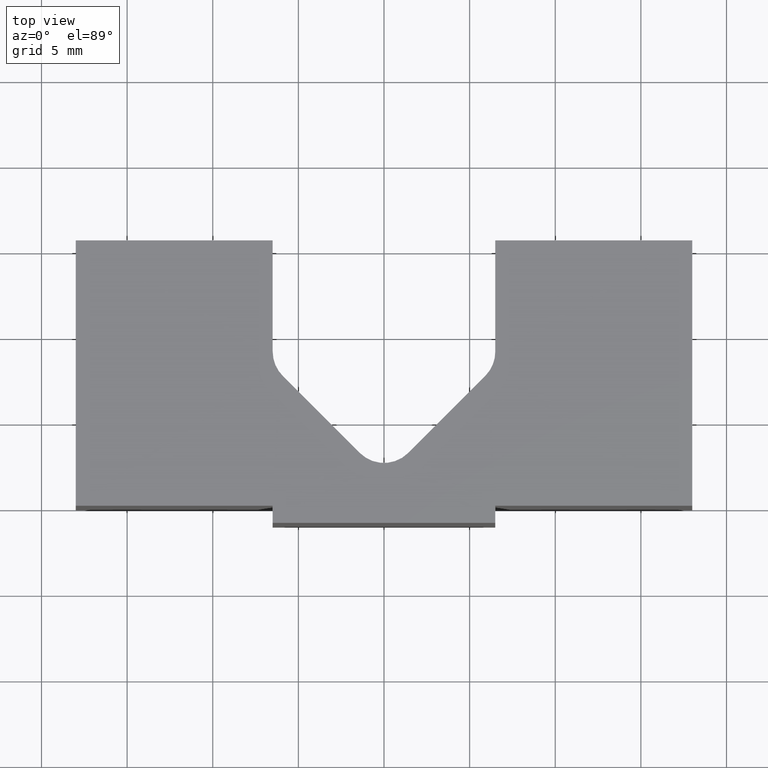
[diagram: clean part render]
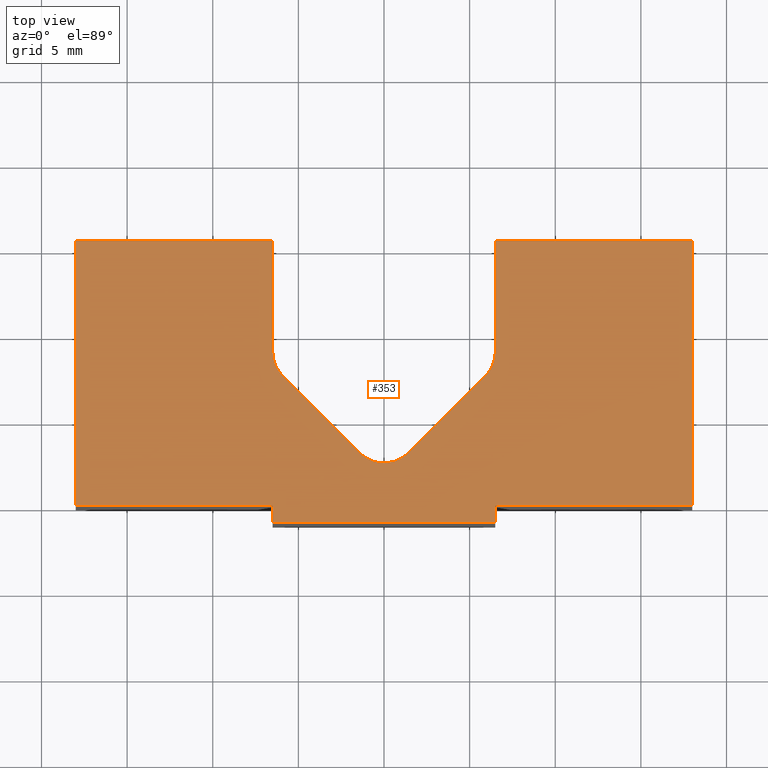
[diagram: same view with one face highlighted and labeled with its STEP entity id]
A machine part, top view. The second image highlights one B-rep face of the part: STEP entity #353.
In plain terms, the highlighted planar face has unit normal (0, 0, 1).
Its self-contained STEP definition (entity closure, byte-faithful):
#36=FACE_OUTER_BOUND('',#54,.T.);
#54=EDGE_LOOP('',(#305,#306,#307,#308,#309,#310,#311,#312,#313,#314,#315,
#316,#317,#318,#319,#320));
#58=CIRCLE('',#389,2.00000000000001);
#59=CIRCLE('',#392,2.);
#60=CIRCLE('',#395,2.);
#74=LINE('',#530,#116);
#77=LINE('',#535,#119);
#79=LINE('',#539,#121);
#81=LINE('',#543,#123);
#83=LINE('',#547,#125);
#85=LINE('',#551,#127);
#87=LINE('',#555,#129);
#90=LINE('',#563,#132);
#93=LINE('',#571,#135);
#96=LINE('',#579,#138);
#98=LINE('',#583,#140);
#100=LINE('',#587,#142);
#102=LINE('',#590,#144);
#116=VECTOR('',#426,10.);
#119=VECTOR('',#431,10.);
#121=VECTOR('',#435,10.);
#123=VECTOR('',#439,10.);
#125=VECTOR('',#443,10.);
#127=VECTOR('',#447,10.);
#129=VECTOR('',#451,10.);
#132=VECTOR('',#460,10.);
#135=VECTOR('',#469,10.);
#138=VECTOR('',#478,10.);
#140=VECTOR('',#482,10.);
#142=VECTOR('',#486,10.);
#144=VECTOR('',#490,10.);
#161=VERTEX_POINT('',#528);
#162=VERTEX_POINT('',#529);
#163=VERTEX_POINT('',#534);
#164=VERTEX_POINT('',#538);
#165=VERTEX_POINT('',#542);
#166=VERTEX_POINT('',#546);
#167=VERTEX_POINT('',#550);
#168=VERTEX_POINT('',#554);
#169=VERTEX_POINT('',#558);
#170=VERTEX_POINT('',#562);
#171=VERTEX_POINT('',#566);
#172=VERTEX_POINT('',#570);
#173=VERTEX_POINT('',#574);
#174=VERTEX_POINT('',#578);
#175=VERTEX_POINT('',#582);
#176=VERTEX_POINT('',#586);
#193=EDGE_CURVE('',#161,#162,#74,.T.);
#196=EDGE_CURVE('',#162,#163,#77,.T.);
#198=EDGE_CURVE('',#163,#164,#79,.T.);
#200=EDGE_CURVE('',#164,#165,#81,.T.);
#202=EDGE_CURVE('',#165,#166,#83,.T.);
#204=EDGE_CURVE('',#166,#167,#85,.T.);
#206=EDGE_CURVE('',#167,#168,#87,.T.);
#208=EDGE_CURVE('',#168,#169,#58,.T.);
#210=EDGE_CURVE('',#169,#170,#90,.T.);
#212=EDGE_CURVE('',#170,#171,#59,.T.);
#214=EDGE_CURVE('',#171,#172,#93,.T.);
#216=EDGE_CURVE('',#172,#173,#60,.T.);
#218=EDGE_CURVE('',#173,#174,#96,.T.);
#220=EDGE_CURVE('',#174,#175,#98,.T.);
#222=EDGE_CURVE('',#175,#176,#100,.T.);
#224=EDGE_CURVE('',#176,#161,#102,.T.);
#305=ORIENTED_EDGE('',*,*,#193,.F.);
#306=ORIENTED_EDGE('',*,*,#224,.F.);
#307=ORIENTED_EDGE('',*,*,#222,.F.);
#308=ORIENTED_EDGE('',*,*,#220,.F.);
#309=ORIENTED_EDGE('',*,*,#218,.F.);
#310=ORIENTED_EDGE('',*,*,#216,.F.);
#311=ORIENTED_EDGE('',*,*,#214,.F.);
#312=ORIENTED_EDGE('',*,*,#212,.F.);
#313=ORIENTED_EDGE('',*,*,#210,.F.);
#314=ORIENTED_EDGE('',*,*,#208,.F.);
#315=ORIENTED_EDGE('',*,*,#206,.F.);
#316=ORIENTED_EDGE('',*,*,#204,.F.);
#317=ORIENTED_EDGE('',*,*,#202,.F.);
#318=ORIENTED_EDGE('',*,*,#200,.F.);
#319=ORIENTED_EDGE('',*,*,#198,.F.);
#320=ORIENTED_EDGE('',*,*,#196,.F.);
#335=PLANE('',#400);
#353=ADVANCED_FACE('',(#36),#335,.T.);
#389=AXIS2_PLACEMENT_3D('',#559,#455,#456);
#392=AXIS2_PLACEMENT_3D('',#567,#464,#465);
#395=AXIS2_PLACEMENT_3D('',#575,#473,#474);
#400=AXIS2_PLACEMENT_3D('',#591,#491,#492);
#426=DIRECTION('',(1.11022302462515E-15,-1.,0.));
#431=DIRECTION('',(-1.,0.,0.));
#435=DIRECTION('',(1.11022302462515E-15,1.,0.));
#439=DIRECTION('',(-1.,-2.58518881399667E-16,0.));
#443=DIRECTION('',(0.,1.,0.));
#447=DIRECTION('',(1.,0.,0.));
#451=DIRECTION('',(1.70803542250024E-16,-1.,0.));
#455=DIRECTION('center_axis',(0.,0.,1.));
#456=DIRECTION('ref_axis',(-1.,0.,0.));
#460=DIRECTION('',(0.707106781186548,-0.707106781186547,0.));
#464=DIRECTION('center_axis',(0.,0.,1.));
#465=DIRECTION('ref_axis',(-0.707106781186548,-0.707106781186548,0.));
#469=DIRECTION('',(0.707106781186548,0.707106781186547,0.));
#473=DIRECTION('center_axis',(0.,0.,1.));
#474=DIRECTION('ref_axis',(0.707106781186548,-0.707106781186548,0.));
#478=DIRECTION('',(0.,1.,0.));
#482=DIRECTION('',(1.,0.,0.));
#486=DIRECTION('',(0.,-1.,0.));
#490=DIRECTION('',(-1.,2.58518881399667E-16,0.));
#491=DIRECTION('center_axis',(0.,0.,1.));
#492=DIRECTION('ref_axis',(1.,0.,0.));
#528=CARTESIAN_POINT('',(6.5,2.97296713609617E-15,8.));
#529=CARTESIAN_POINT('',(6.5,-1.,8.));
#530=CARTESIAN_POINT('',(6.5,2.97296713609617E-15,8.));
#534=CARTESIAN_POINT('',(-6.5,-1.,8.));
#535=CARTESIAN_POINT('',(6.5,-1.,8.));
#538=CARTESIAN_POINT('',(-6.5,2.97296713609617E-15,8.));
#539=CARTESIAN_POINT('',(-6.5,-1.,8.));
#542=CARTESIAN_POINT('',(-18.,0.,8.));
#543=CARTESIAN_POINT('',(-6.5,2.97296713609617E-15,8.));
#546=CARTESIAN_POINT('',(-18.,15.5,8.));
#547=CARTESIAN_POINT('',(-18.,0.,8.));
#550=CARTESIAN_POINT('',(-6.5,15.5,8.));
#551=CARTESIAN_POINT('',(-18.,15.5,8.));
#554=CARTESIAN_POINT('',(-6.5,9.,8.));
#555=CARTESIAN_POINT('',(-6.5,15.5,8.));
#558=CARTESIAN_POINT('',(-5.9142135623731,7.5857864376269,8.));
#559=CARTESIAN_POINT('Origin',(-4.5,9.,8.));
#562=CARTESIAN_POINT('',(-1.41421356237309,3.0857864376269,8.));
#563=CARTESIAN_POINT('',(-5.9142135623731,7.5857864376269,8.));
#566=CARTESIAN_POINT('',(1.41421356237309,3.0857864376269,8.));
#567=CARTESIAN_POINT('Origin',(0.,4.5,8.));
#570=CARTESIAN_POINT('',(5.9142135623731,7.5857864376269,8.));
#571=CARTESIAN_POINT('',(1.41421356237309,3.0857864376269,8.));
#574=CARTESIAN_POINT('',(6.5,9.,8.));
#575=CARTESIAN_POINT('Origin',(4.5,9.,8.));
#578=CARTESIAN_POINT('',(6.5,15.5,8.));
#579=CARTESIAN_POINT('',(6.5,9.,8.));
#582=CARTESIAN_POINT('',(18.,15.5,8.));
#583=CARTESIAN_POINT('',(6.5,15.5,8.));
#586=CARTESIAN_POINT('',(18.,0.,8.));
#587=CARTESIAN_POINT('',(18.,15.5,8.));
#590=CARTESIAN_POINT('',(18.,0.,8.));
#591=CARTESIAN_POINT('Origin',(-7.80625564189563E-16,6.80953578423831,8.));